MODEL singele_phase_to_3phase_svpwm_IM_VF_PI
KIND model
BLOCK [Reference] 1-ph AC  REF=powerlib/Electrical\nSources/AC Voltage Source
  Amplitude = 650
  Frequency = 50
  FunctionWithSeparateData = off
  Measurements = None
  Phase = 0
  Ports = [0, 0, 0, 0, 0, 1, 1]
  RTWMemSecDataConstants = Inherit from model
  RTWMemSecDataInternal = Inherit from model
  RTWMemSecDataParameters = Inherit from model
  RTWMemSecFuncExecute = Inherit from model
  RTWMemSecFuncInitTerm = Inherit from model
  SID = 1
  SampleTime = 0
  ShowPortLabels = FromPortIcon
  SourceBlock = powerlib/Electrical\nSources/AC Voltage Source
  SourceProductBaseCode = PS
  SourceProductName = Simscape Electrical
  SourceType = AC Voltage Source
  SystemSampleTime = -1
BLOCK [Reference] Asynchronous Machine\nSI Units  REF=powerlib/Machines/Asynchronous Machine\nSI Units
  FunctionWithSeparateData = off
  InitialConditions = [ 1,0   0,0,0   0,0,0 ]
  Lm = 0.2037
  LoadFlowParameters = 0
  Mechanical = [0.02 0.005752 2]
  MechanicalLoad = Torque Tm
  NominalParameters = [3730 350 50]
  PolePairs = 2
  Ports = [1, 1, 0, 0, 0, 3]
  PresetModel = No
  RTWMemSecDataConstants = Inherit from model
  RTWMemSecDataInternal = Inherit from model
  RTWMemSecDataParameters = Inherit from model
  RTWMemSecFuncExecute = Inherit from model
  RTWMemSecFuncInitTerm = Inherit from model
  ReferenceFrame = Rotor
  Rotor = [1.083 0.005974]
  RotorType = Squirrel-cage
  SID = 2
  Saturation = [9.9249,19.6672,38.0377,51.3988,69.2824,105.1337,152.5532,214.2421,303.1917;230, 322, 414, 460, 506, 552, 598, 644, 690]
  ShowDetailedParameters = on
  ShowPortLabels = FromPortIcon
  SimulateSaturation = off
  SourceBlock = powerlib/Machines/Asynchronous Machine\nSI Units
  SourceProductBaseCode = PS
  SourceProductName = Simscape Electrical
  SourceType = Asynchronous Machine
  Stator = [1.115 0.005974]
  SystemSampleTime = -1
  TsBlock = -1
  TsPowergui = 0
  Units = SI
BLOCK [BusCreator] Bus\nCreator
  DisplayOption = bar
  InheritFromInputs = on
  Inputs = 3
  Ports = [3, 1]
  SID = 3
BLOCK [BusSelector] Bus\nSelector
  OutputAsBus = off
  OutputSignals = Mechanical.Rotor speed (wm),Mechanical.Electromagnetic torque Te (N*m)
  Ports = [1, 2]
  SID = 4
BLOCK [Reference] C  REF=powerlib/Elements/Series RLC Branch
  BranchType = C
  Capacitance = 10e-6
  Inductance = 1e-3
  InitialCurrent = 0
  InitialVoltage = 0
  LConnTagsString = __new0
  LeftPortType = p1
  Measurements = None
  PhysicalDomain = powersysdomain
  Ports = [0, 0, 0, 0, 0, 1, 1]
  RConnTagsString = __new0
  Resistance = 1
  RightPortType = p1
  SID = 5
  SetiL0 = off
  Setx0 = off
  SourceBlock = powerlib/Elements/Series RLC Branch
  SourceProductBaseCode = PS
  SourceProductName = Simscape Electrical
  SourceType = Series RLC Branch
  SubClassName = unknown
BLOCK [Reference] C1  REF=powerlib/Elements/Series RLC Branch
  BranchType = C
  Capacitance = 2300e-6
  Inductance = 1e-3
  InitialCurrent = 0
  InitialVoltage = 0
  LConnTagsString = __new0
  LeftPortType = p1
  Measurements = None
  PhysicalDomain = powersysdomain
  Ports = [0, 0, 0, 0, 0, 1, 1]
  RConnTagsString = __new0
  Resistance = 1
  RightPortType = p1
  SID = 6
  SetiL0 = off
  Setx0 = off
  SourceBlock = powerlib/Elements/Series RLC Branch
  SourceProductBaseCode = PS
  SourceProductName = Simscape Electrical
  SourceType = Series RLC Branch
  SubClassName = unknown
BLOCK [Reference] C2  REF=powerlib/Elements/Series RLC Branch
  BranchType = C
  Capacitance = 2300e-6
  Inductance = 1e-3
  InitialCurrent = 0
  InitialVoltage = 0
  LConnTagsString = __new0
  LeftPortType = p1
  Measurements = None
  PhysicalDomain = powersysdomain
  Ports = [0, 0, 0, 0, 0, 1, 1]
  RConnTagsString = __new0
  Resistance = 1
  RightPortType = p1
  SID = 7
  SetiL0 = off
  Setx0 = off
  SourceBlock = powerlib/Elements/Series RLC Branch
  SourceProductBaseCode = PS
  SourceProductName = Simscape Electrical
  SourceType = Series RLC Branch
  SubClassName = unknown
BLOCK [Clock] Clock
  SID = 8
BLOCK [Reference] Discrete\nPI Controller1  REF=powerlib_extras/Discrete \nControl Blocks/Discrete\nPI Controller
  FunctionWithSeparateData = off
  Init = 0
  Ki = 80
  Kp = 0.6
  Par_Limits = [70 0]
  Ports = [1, 1]
  RTWMemSecDataConstants = Inherit from model
  RTWMemSecDataInternal = Inherit from model
  RTWMemSecDataParameters = Inherit from model
  RTWMemSecFuncExecute = Inherit from model
  RTWMemSecFuncInitTerm = Inherit from model
  SID = 9
  ShowPortLabels = FromPortIcon
  SourceBlock = powerlib_extras/Discrete \nControl Blocks/Discrete\nPI Controller
  SourceProductBaseCode = PS
  SourceProductName = Simscape Electrical
  SourceType = Discrete PI Controller
  SystemSampleTime = -1
  Ts = 50e-6
BLOCK [Reference] Discrete\nPI Controller2  REF=powerlib_extras/Discrete \nControl Blocks/Discrete\nPI Controller
  FunctionWithSeparateData = off
  Init = 0
  Ki = 120
  Kp = 2
  Par_Limits = [350 0]
  Ports = [1, 1]
  RTWMemSecDataConstants = Inherit from model
  RTWMemSecDataInternal = Inherit from model
  RTWMemSecDataParameters = Inherit from model
  RTWMemSecFuncExecute = Inherit from model
  RTWMemSecFuncInitTerm = Inherit from model
  SID = 10
  ShowPortLabels = FromPortIcon
  SourceBlock = powerlib_extras/Discrete \nControl Blocks/Discrete\nPI Controller
  SourceProductBaseCode = PS
  SourceProductName = Simscape Electrical
  SourceType = Discrete PI Controller
  SystemSampleTime = -1
  Ts = 50e-6
BLOCK [SubSystem] Embedded\nMATLAB Function1
  ErrorFcn = Stateflow.Translate.translate
  PermitHierarchicalResolution = ExplicitOnly
  Ports = [3, 2]
  RequestExecContextInheritance = off
  SFBlockType = MATLAB Function
  SID = 11
  TreatAsAtomicUnit = on
BLOCK [Demux] Embedded\nMATLAB Function1/ Demux 
  Outputs = 1
  Ports = [1, 1]
  SID = 11::10
BLOCK [S-Function] Embedded\nMATLAB Function1/ SFunction 
  EnableBusSupport = off
  FunctionName = sf_sfun
  PortCounts = [3 3]
  Ports = [3, 3]
  SFcnIsStateOwnerBlock = off
  SFunctionDeploymentMode = off
  SID = 11::9
  Tag = Stateflow S-Function 7
BLOCK [Terminator] Embedded\nMATLAB Function1/ Terminator 
  SID = 11::11
BLOCK [Inport] Embedded\nMATLAB Function1/Ua
  IconDisplay = Port number
  SID = 11::1
BLOCK [Outport] Embedded\nMATLAB Function1/Ualpha
  IconDisplay = Port number
  SID = 11::7
BLOCK [Inport] Embedded\nMATLAB Function1/Ub
  IconDisplay = Port number
  Port = 2
  SID = 11::2
BLOCK [Outport] Embedded\nMATLAB Function1/Ubeta
  IconDisplay = Port number
  Port = 2
  SID = 11::8
BLOCK [Inport] Embedded\nMATLAB Function1/Uc
  IconDisplay = Port number
  Port = 3
  SID = 11::3
BLOCK [Fcn] Fcn1
  Expr = u[1]*sin(u[2]*2*pi*u[3])
  SID = 12
BLOCK [Fcn] Fcn2
  Expr = u[1]*sin(u[2]*2*pi*u[3]-2*pi/3)
  SID = 13
BLOCK [Fcn] Fcn3
  Expr = u[1]*sin(u[2]*2*pi*u[3]+2*pi/3)
  SID = 14
BLOCK [Reference] Ground1  REF=powerlib/Elements/Ground
  LConnTagsString = a
  LeftPortType = p1
  PhysicalDomain = powersysdomain
  Ports = [0, 0, 0, 0, 0, 1]
  RightPortType = p1
  SID = 15
  SourceBlock = powerlib/Elements/Ground
  SourceProductBaseCode = PS
  SourceProductName = Simscape Electrical
  SourceType = Ground
  SubClassName = unknown
BLOCK [Reference] L  REF=powerlib/Elements/Series RLC Branch
  BranchType = L
  Capacitance = 1e-6
  Inductance = 0.1e-3
  InitialCurrent = 0
  InitialVoltage = 0
  LConnTagsString = __new0
  LeftPortType = p1
  Measurements = None
  PhysicalDomain = powersysdomain
  Ports = [0, 0, 0, 0, 0, 1, 1]
  RConnTagsString = __new0
  Resistance = 1
  RightPortType = p1
  SID = 16
  SetiL0 = off
  Setx0 = off
  SourceBlock = powerlib/Elements/Series RLC Branch
  SourceProductBaseCode = PS
  SourceProductName = Simscape Electrical
  SourceType = Series RLC Branch
  SubClassName = unknown
BLOCK [Step] Ref. Speed (rps)1
  After = 130
  Before = 157
  SID = 17
  SampleTime = 0
  Time = 3
BLOCK [Saturate] Saturation
  InputPortMap = u0
  LowerLimit = 10
  Ports = [1, 1]
  SID = 18
  UpperLimit = 750
BLOCK [Step] Step
  After = 3
  SID = 19
  SampleTime = 0
BLOCK [SubSystem] Subsystem2
  Ports = [3, 1]
  RequestExecContextInheritance = off
  SID = 20
BLOCK [Constant] Subsystem2/Constant1
  SID = 24
  Value = 0.0002
BLOCK [SubSystem] Subsystem2/N1
  Ports = [2, 1]
  RequestExecContextInheritance = off
  SID = 25
BLOCK [Constant] Subsystem2/N1/Constant
  SID = 28
BLOCK [Constant] Subsystem2/N1/Constant1
  SID = 29
  Value = 0
BLOCK [Gain] Subsystem2/N1/Gain
  Gain = 1.732
  OutDataTypeStr = Inherit: Inherit via internal rule
  ParamDataTypeStr = Inherit: Inherit via internal rule
  SID = 30
  SaturateOnIntegerOverflow = off
BLOCK [Gain] Subsystem2/N1/Gain1
  Gain = -1.732
  OutDataTypeStr = Inherit: Inherit via internal rule
  ParamDataTypeStr = Inherit: Inherit via internal rule
  SID = 31
  SaturateOnIntegerOverflow = off
BLOCK [Gain] Subsystem2/N1/Gain2
  Gain = 2
  OutDataTypeStr = Inherit: Inherit via internal rule
  ParamDataTypeStr = Inherit: Inherit via internal rule
  SID = 32
  SaturateOnIntegerOverflow = off
BLOCK [Gain] Subsystem2/N1/Gain3
  Gain = 4
  OutDataTypeStr = Inherit: Inherit via internal rule
  ParamDataTypeStr = Inherit: Inherit via internal rule
  SID = 33
  SaturateOnIntegerOverflow = off
BLOCK [Outport] Subsystem2/N1/N
  IconDisplay = Port number
  SID = 40
BLOCK [Sum] Subsystem2/N1/Sum
  InputSameDT = off
  Inputs = |-+
  OutDataTypeStr = Inherit: Inherit via internal rule
  Ports = [2, 1]
  SID = 34
  SaturateOnIntegerOverflow = off
BLOCK [Sum] Subsystem2/N1/Sum1
  InputSameDT = off
  Inputs = |-+
  OutDataTypeStr = Inherit: Inherit via internal rule
  Ports = [2, 1]
  SID = 35
  SaturateOnIntegerOverflow = off
BLOCK [Sum] Subsystem2/N1/Sum2
  InputSameDT = off
  Inputs = |+++
  OutDataTypeStr = Inherit: Inherit via internal rule
  Ports = [3, 1]
  SID = 36
  SaturateOnIntegerOverflow = off
BLOCK [Switch] Subsystem2/N1/Switch
  InputSameDT = off
  SID = 37
  SaturateOnIntegerOverflow = off
BLOCK [Switch] Subsystem2/N1/Switch1
  InputSameDT = off
  SID = 38
  SaturateOnIntegerOverflow = off
BLOCK [Switch] Subsystem2/N1/Switch2
  InputSameDT = off
  SID = 39
  SaturateOnIntegerOverflow = off
BLOCK [Inport] Subsystem2/N1/Ualfa
  IconDisplay = Port number
  SID = 26
BLOCK [Inport] Subsystem2/N1/Ubeta
  IconDisplay = Port number
  Port = 2
  SID = 27
BLOCK [Scope] Subsystem2/Scope
  Floating = off
  NumInputPorts = 1
  Ports = [1]
  SID = 41
  ScopeSpecificationString = C++SS(StrPVP('Location','[6, 43, 1030, 714]'),StrPVP('Open','off'),StrPVP('ZoomMode','xonly'),MxPVP('AxesTitles',54,'struct(''axes1'',''%<SignalLabel>'')'),StrPVP('TimeRange','0.4'),StrPVP('YMin','2e-005'),StrPVP('YMax','8e-005'),StrPVP('DataFormat','StructureWithTime'),StrPVP('LimitDataPoints','off'),StrPVP('BlockParamSampleTime','0'),StrPVP('Decimation','1'),StrPVP('BlockParamSampleInput','off')...<+1ch>
BLOCK [Scope] Subsystem2/Scope1
  Floating = off
  NumInputPorts = 1
  Ports = [1]
  SID = 42
  ScopeSpecificationString = C++SS(StrPVP('Location','[6, 50, 1030, 721]'),StrPVP('Open','off'),StrPVP('ZoomMode','xonly'),MxPVP('AxesTitles',54,'struct(''axes1'',''%<SignalLabel>'')'),StrPVP('YMin','2'),StrPVP('YMax','6'),StrPVP('SaveName','ScopeData1'),StrPVP('DataFormat','StructureWithTime'),StrPVP('LimitDataPoints','off'),StrPVP('BlockParamSampleTime','0'),StrPVP('Decimation','1'),StrPVP('BlockParamSampleInput','off'))
BLOCK [Scope] Subsystem2/Scope3
  Floating = off
  NumInputPorts = 2
  Ports = [2]
  SID = 43
  ScopeSpecificationString = C++SS(StrPVP('Location','[6, 50, 1030, 721]'),StrPVP('Open','off'),StrPVP('ZoomMode','xonly'),MxPVP('AxesTitles',54,'struct(''axes1'',''%<SignalLabel>'',''axes2'',''%<SignalLabel>'')'),StrPVP('TimeRange','0.1             '),StrPVP('YMin','7.5~93'),StrPVP('YMax','37.5~100'),StrPVP('SaveName','ScopeData2'),StrPVP('DataFormat','StructureWithTime'),StrPVP('LimitDataPoints','off'),StrPVP('BlockParamSam...<+77ch>
BLOCK [Scope] Subsystem2/Scope6
  Floating = off
  NumInputPorts = 1
  Ports = [1]
  SID = 44
  ScopeSpecificationString = C++SS(StrPVP('Location','[6, 50, 1030, 721]'),StrPVP('Open','off'),StrPVP('ZoomMode','xonly'),MxPVP('AxesTitles',54,'struct(''axes1'',''%<SignalLabel>'')'),StrPVP('YMin','2'),StrPVP('YMax','6'),StrPVP('SaveName','ScopeData3'),StrPVP('DataFormat','StructureWithTime'),StrPVP('LimitDataPoints','off'),StrPVP('BlockParamSampleTime','0'),StrPVP('Decimation','1'),StrPVP('BlockParamSampleInput','off'))
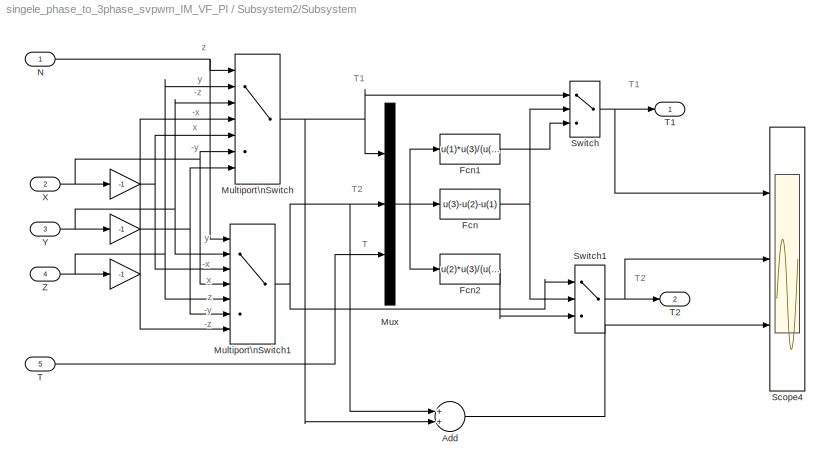
BLOCK [SubSystem] Subsystem2/Subsystem
  Ports = [5, 2]
  RequestExecContextInheritance = off
  SID = 45
BLOCK [Gain] Subsystem2/Subsystem/ 
  Gain = -1
  OutDataTypeStr = Inherit: Inherit via internal rule
  ParamDataTypeStr = Inherit: Inherit via internal rule
  SID = 51
  SaturateOnIntegerOverflow = off
BLOCK [Gain] Subsystem2/Subsystem/  
  Gain = -1
  OutDataTypeStr = Inherit: Inherit via internal rule
  ParamDataTypeStr = Inherit: Inherit via internal rule
  SID = 52
  SaturateOnIntegerOverflow = off
BLOCK [Gain] Subsystem2/Subsystem/    
  Gain = -1
  OutDataTypeStr = Inherit: Inherit via internal rule
  ParamDataTypeStr = Inherit: Inherit via internal rule
  SID = 53
  SaturateOnIntegerOverflow = off
BLOCK [Sum] Subsystem2/Subsystem/Add
  InputSameDT = off
  OutDataTypeStr = Inherit: Inherit via internal rule
  Ports = [2, 1]
  SID = 54
  SaturateOnIntegerOverflow = off
BLOCK [Fcn] Subsystem2/Subsystem/Fcn
  Expr = u(3)-u(2)-u(1)
  SID = 55
BLOCK [Fcn] Subsystem2/Subsystem/Fcn1
  Expr = u(1)*u(3)/(u(1)+u(2))
  SID = 56
BLOCK [Fcn] Subsystem2/Subsystem/Fcn2
  Expr = u(2)*u(3)/(u(1)+u(2))
  SID = 57
BLOCK [MultiPortSwitch] Subsystem2/Subsystem/Multiport\nSwitch
  InputSameDT = off
  Inputs = 6
  Ports = [7, 1]
  SID = 58
  SaturateOnIntegerOverflow = off
BLOCK [MultiPortSwitch] Subsystem2/Subsystem/Multiport\nSwitch1
  InputSameDT = off
  Inputs = 6
  Ports = [7, 1]
  SID = 59
  SaturateOnIntegerOverflow = off
BLOCK [Mux] Subsystem2/Subsystem/Mux
  DisplayOption = bar
  Inputs = 3
  Ports = [3, 1]
  SID = 60
BLOCK [Inport] Subsystem2/Subsystem/N
  IconDisplay = Port number
  SID = 46
BLOCK [Scope] Subsystem2/Subsystem/Scope4
  Floating = off
  NumInputPorts = 3
  Ports = [3]
  SID = 61
  ScopeSpecificationString = C++SS(StrPVP('Location','[5, 54, 1029, 741]'),StrPVP('Open','off'),StrPVP('ZoomMode','xonly'),MxPVP('AxesTitles',54,'struct(''axes1'',''%<SignalLabel>'',''axes2'',''%<SignalLabel>'',''axes3'',''%<SignalLabel>'')'),StrPVP('TimeRange','0.35'),StrPVP('YMin','-1e-005~-1e-005~0.00011'),StrPVP('YMax','0.00018~0.00018~0.000205'),StrPVP('SaveName','ScopeData4'),StrPVP('DataFormat','StructureWithTime'),Str...<+127ch>
BLOCK [Switch] Subsystem2/Subsystem/Switch
  InputSameDT = off
  SID = 62
  SaturateOnIntegerOverflow = off
BLOCK [Switch] Subsystem2/Subsystem/Switch1
  Criteria = u2 > Threshold
  InputSameDT = off
  SID = 63
  SaturateOnIntegerOverflow = off
BLOCK [Inport] Subsystem2/Subsystem/T
  IconDisplay = Port number
  Port = 5
  SID = 50
BLOCK [Outport] Subsystem2/Subsystem/T1
  IconDisplay = Port number
  SID = 64
BLOCK [Outport] Subsystem2/Subsystem/T2
  IconDisplay = Port number
  Port = 2
  SID = 65
BLOCK [Inport] Subsystem2/Subsystem/X
  IconDisplay = Port number
  Port = 2
  SID = 47
BLOCK [Inport] Subsystem2/Subsystem/Y
  IconDisplay = Port number
  Port = 3
  SID = 48
BLOCK [Inport] Subsystem2/Subsystem/Z
  IconDisplay = Port number
  Port = 4
  SID = 49
BLOCK [SubSystem] Subsystem2/Subsystem1
  Ports = [4, 3]
  RequestExecContextInheritance = off
  SID = 83
BLOCK [Gain] Subsystem2/Subsystem1/Gain1
  Gain = 1/4
  OutDataTypeStr = Inherit: Inherit via internal rule
  ParamDataTypeStr = Inherit: Inherit via internal rule
  SID = 88
  SaturateOnIntegerOverflow = off
BLOCK [Gain] Subsystem2/Subsystem1/Gain2
  Gain = 0.5
  OutDataTypeStr = Inherit: Inherit via internal rule
  ParamDataTypeStr = Inherit: Inherit via internal rule
  SID = 89
  SaturateOnIntegerOverflow = off
BLOCK [Gain] Subsystem2/Subsystem1/Gain3
  Gain = 0.5
  OutDataTypeStr = Inherit: Inherit via internal rule
  ParamDataTypeStr = Inherit: Inherit via internal rule
  SID = 90
  SaturateOnIntegerOverflow = off
BLOCK [MultiPortSwitch] Subsystem2/Subsystem1/Multiport\nSwitch
  InputSameDT = off
  Inputs = 6
  Ports = [7, 1]
  SID = 91
  SaturateOnIntegerOverflow = off
BLOCK [MultiPortSwitch] Subsystem2/Subsystem1/Multiport\nSwitch1
  InputSameDT = off
  Inputs = 6
  Ports = [7, 1]
  SID = 92
  SaturateOnIntegerOverflow = off
BLOCK [MultiPortSwitch] Subsystem2/Subsystem1/Multiport\nSwitch2
  InputSameDT = off
  Inputs = 6
  Ports = [7, 1]
  SID = 93
  SaturateOnIntegerOverflow = off
BLOCK [Inport] Subsystem2/Subsystem1/N
  IconDisplay = Port number
  Port = 4
  SID = 87
BLOCK [Sum] Subsystem2/Subsystem1/Subtract1
  InputSameDT = off
  Inputs = --+
  OutDataTypeStr = Inherit: Inherit via internal rule
  Ports = [3, 1]
  SID = 94
  SaturateOnIntegerOverflow = off
BLOCK [Sum] Subsystem2/Subsystem1/Subtract2
  InputSameDT = off
  OutDataTypeStr = Inherit: Inherit via internal rule
  Ports = [2, 1]
  SID = 95
  SaturateOnIntegerOverflow = off
BLOCK [Sum] Subsystem2/Subsystem1/Subtract3
  InputSameDT = off
  OutDataTypeStr = Inherit: Inherit via internal rule
  Ports = [2, 1]
  SID = 96
  SaturateOnIntegerOverflow = off
BLOCK [Inport] Subsystem2/Subsystem1/T
  IconDisplay = Port number
  Port = 3
  SID = 86
BLOCK [Inport] Subsystem2/Subsystem1/T1
  IconDisplay = Port number
  SID = 84
BLOCK [Inport] Subsystem2/Subsystem1/T2
  IconDisplay = Port number
  Port = 2
  SID = 85
BLOCK [Outport] Subsystem2/Subsystem1/Tcm1
  IconDisplay = Port number
  SID = 97
BLOCK [Outport] Subsystem2/Subsystem1/Tcm2
  IconDisplay = Port number
  Port = 2
  SID = 98
BLOCK [Outport] Subsystem2/Subsystem1/Tcm3
  IconDisplay = Port number
  Port = 3
  SID = 99
BLOCK [Inport] Subsystem2/Ualfa
  IconDisplay = Port number
  SID = 21
BLOCK [Inport] Subsystem2/Ubeta
  IconDisplay = Port number
  Port = 2
  SID = 22
BLOCK [Inport] Subsystem2/Vdc
  IconDisplay = Port number
  Port = 3
  SID = 23
BLOCK [SubSystem] Subsystem2/X.Y.Z
  Ports = [4, 3]
  RequestExecContextInheritance = off
  SID = 121
BLOCK [Product] Subsystem2/X.Y.Z/Divide
  InputSameDT = off
  Inputs = **/
  OutDataTypeStr = Inherit: Inherit via internal rule
  Ports = [3, 1]
  RndMeth = Floor
  SID = 126
  SaturateOnIntegerOverflow = off
BLOCK [Product] Subsystem2/X.Y.Z/Divide1
  InputSameDT = off
  Inputs = **/
  OutDataTypeStr = Inherit: Inherit via internal rule
  Ports = [3, 1]
  RndMeth = Floor
  SID = 127
  SaturateOnIntegerOverflow = off
BLOCK [Product] Subsystem2/X.Y.Z/Divide2
  InputSameDT = off
  Inputs = **/
  OutDataTypeStr = Inherit: Inherit via internal rule
  Ports = [3, 1]
  RndMeth = Floor
  SID = 128
  SaturateOnIntegerOverflow = off
BLOCK [Gain] Subsystem2/X.Y.Z/Gain
  Gain = 0.577
  OutDataTypeStr = Inherit: Inherit via internal rule
  ParamDataTypeStr = Inherit: Inherit via internal rule
  SID = 129
  SaturateOnIntegerOverflow = off
BLOCK [Gain] Subsystem2/X.Y.Z/Gain1
  Gain = 1.732
  OutDataTypeStr = Inherit: Inherit via internal rule
  ParamDataTypeStr = Inherit: Inherit via internal rule
  SID = 130
  SaturateOnIntegerOverflow = off
BLOCK [Gain] Subsystem2/X.Y.Z/Gain2
  Gain = 1.5
  OutDataTypeStr = Inherit: Inherit via internal rule
  ParamDataTypeStr = Inherit: Inherit via internal rule
  SID = 131
  SaturateOnIntegerOverflow = off
BLOCK [Gain] Subsystem2/X.Y.Z/Gain3
  Gain = 1.5
  OutDataTypeStr = Inherit: Inherit via internal rule
  ParamDataTypeStr = Inherit: Inherit via internal rule
  SID = 132
  SaturateOnIntegerOverflow = off
BLOCK [Sum] Subsystem2/X.Y.Z/Subtract
  InputSameDT = off
  OutDataTypeStr = Inherit: Inherit via internal rule
  Ports = [2, 1]
  SID = 133
  SaturateOnIntegerOverflow = off
BLOCK [Sum] Subsystem2/X.Y.Z/Subtract1
  InputSameDT = off
  Inputs = +-
  OutDataTypeStr = Inherit: Inherit via internal rule
  Ports = [2, 1]
  SID = 134
  SaturateOnIntegerOverflow = off
BLOCK [Inport] Subsystem2/X.Y.Z/T
  IconDisplay = Port number
  SID = 122
BLOCK [Inport] Subsystem2/X.Y.Z/Ualfa
  IconDisplay = Port number
  Port = 2
  SID = 123
BLOCK [Inport] Subsystem2/X.Y.Z/Ubeta
  IconDisplay = Port number
  Port = 3
  SID = 124
BLOCK [Inport] Subsystem2/X.Y.Z/Udc
  IconDisplay = Port number
  Port = 4
  SID = 125
BLOCK [Outport] Subsystem2/X.Y.Z/X
  IconDisplay = Port number
  SID = 135
BLOCK [Outport] Subsystem2/X.Y.Z/Y
  IconDisplay = Port number
  Port = 2
  SID = 136
BLOCK [Outport] Subsystem2/X.Y.Z/Z
  IconDisplay = Port number
  Port = 3
  SID = 137
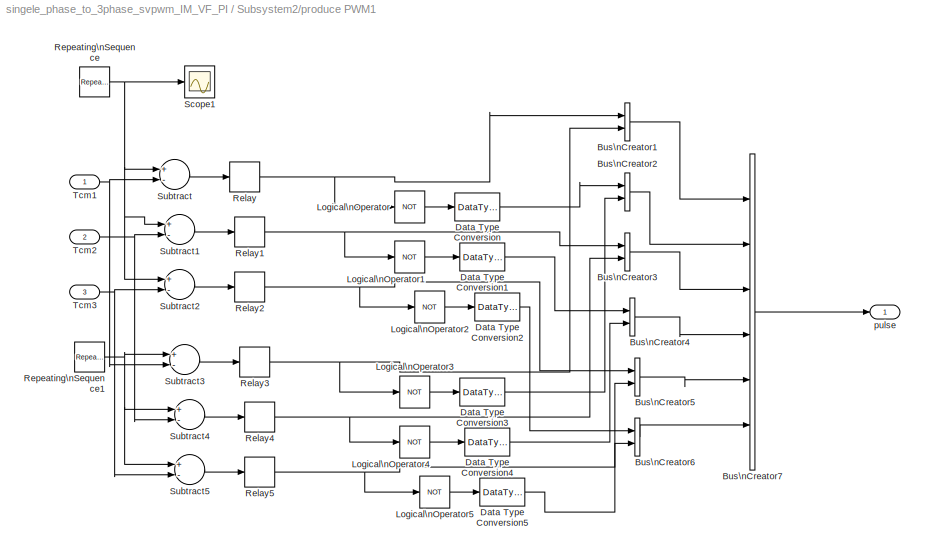
BLOCK [SubSystem] Subsystem2/produce PWM1
  Ports = [3, 1]
  RequestExecContextInheritance = off
  SID = 138
BLOCK [BusCreator] Subsystem2/produce PWM1/Bus\nCreator1
  DisplayOption = bar
  InheritFromInputs = on
  Inputs = 2
  Ports = [2, 1]
  SID = 142
BLOCK [BusCreator] Subsystem2/produce PWM1/Bus\nCreator2
  DisplayOption = bar
  InheritFromInputs = on
  Inputs = 2
  Ports = [2, 1]
  SID = 143
BLOCK [BusCreator] Subsystem2/produce PWM1/Bus\nCreator3
  DisplayOption = bar
  InheritFromInputs = on
  Inputs = 2
  Ports = [2, 1]
  SID = 144
BLOCK [BusCreator] Subsystem2/produce PWM1/Bus\nCreator4
  DisplayOption = bar
  InheritFromInputs = on
  Inputs = 2
  Ports = [2, 1]
  SID = 145
BLOCK [BusCreator] Subsystem2/produce PWM1/Bus\nCreator5
  DisplayOption = bar
  InheritFromInputs = on
  Inputs = 2
  Ports = [2, 1]
  SID = 146
BLOCK [BusCreator] Subsystem2/produce PWM1/Bus\nCreator6
  DisplayOption = bar
  InheritFromInputs = on
  Inputs = 2
  Ports = [2, 1]
  SID = 147
BLOCK [BusCreator] Subsystem2/produce PWM1/Bus\nCreator7
  DisplayOption = bar
  InheritFromInputs = on
  Inputs = 6
  Ports = [6, 1]
  SID = 148
BLOCK [DataTypeConversion] Subsystem2/produce PWM1/Data Type Conversion
  OutDataTypeStr = double
  RndMeth = Floor
  SID = 149
  SaturateOnIntegerOverflow = off
BLOCK [DataTypeConversion] Subsystem2/produce PWM1/Data Type Conversion1
  OutDataTypeStr = double
  RndMeth = Floor
  SID = 150
  SaturateOnIntegerOverflow = off
BLOCK [DataTypeConversion] Subsystem2/produce PWM1/Data Type Conversion2
  OutDataTypeStr = double
  RndMeth = Floor
  SID = 151
  SaturateOnIntegerOverflow = off
BLOCK [DataTypeConversion] Subsystem2/produce PWM1/Data Type Conversion3
  OutDataTypeStr = double
  RndMeth = Floor
  SID = 152
  SaturateOnIntegerOverflow = off
BLOCK [DataTypeConversion] Subsystem2/produce PWM1/Data Type Conversion4
  OutDataTypeStr = double
  RndMeth = Floor
  SID = 153
  SaturateOnIntegerOverflow = off
BLOCK [DataTypeConversion] Subsystem2/produce PWM1/Data Type Conversion5
  OutDataTypeStr = double
  RndMeth = Floor
  SID = 154
  SaturateOnIntegerOverflow = off
BLOCK [Logic] Subsystem2/produce PWM1/Logical\nOperator
  AllPortsSameDT = off
  Operator = NOT
  Ports = [1, 1]
  SID = 155
BLOCK [Logic] Subsystem2/produce PWM1/Logical\nOperator1
  AllPortsSameDT = off
  Operator = NOT
  Ports = [1, 1]
  SID = 156
BLOCK [Logic] Subsystem2/produce PWM1/Logical\nOperator2
  AllPortsSameDT = off
  Operator = NOT
  Ports = [1, 1]
  SID = 157
BLOCK [Logic] Subsystem2/produce PWM1/Logical\nOperator3
  AllPortsSameDT = off
  Operator = NOT
  Ports = [1, 1]
  SID = 158
BLOCK [Logic] Subsystem2/produce PWM1/Logical\nOperator4
  AllPortsSameDT = off
  Operator = NOT
  Ports = [1, 1]
  SID = 159
BLOCK [Logic] Subsystem2/produce PWM1/Logical\nOperator5
  AllPortsSameDT = off
  Operator = NOT
  Ports = [1, 1]
  SID = 160
BLOCK [Relay] Subsystem2/produce PWM1/Relay
  SID = 161
BLOCK [Relay] Subsystem2/produce PWM1/Relay1
  SID = 162
BLOCK [Relay] Subsystem2/produce PWM1/Relay2
  SID = 163
BLOCK [Relay] Subsystem2/produce PWM1/Relay3
  SID = 164
BLOCK [Relay] Subsystem2/produce PWM1/Relay4
  SID = 165
BLOCK [Relay] Subsystem2/produce PWM1/Relay5
  SID = 166
BLOCK [Reference] Subsystem2/produce PWM1/Repeating\nSequence  REF=simulink/Sources/Repeating\nSequence
  FunctionWithSeparateData = off
  Ports = [0, 1]
  RTWMemSecDataConstants = Inherit from model
  RTWMemSecDataInternal = Inherit from model
  RTWMemSecDataParameters = Inherit from model
  RTWMemSecFuncExecute = Inherit from model
  RTWMemSecFuncInitTerm = Inherit from model
  SID = 167
  ShowPortLabels = FromPortIcon
  SourceBlock = simulink/Sources/Repeating\nSequence
  SourceProductBaseCode = SL
  SourceProductName = Simulink
  SourceType = Repeating table
  SystemSampleTime = -1
  rep_seq_t = [0 0.0001 0.0002]
  rep_seq_y = [0 0.0001/2 0]
BLOCK [Reference] Subsystem2/produce PWM1/Repeating\nSequence1  REF=simulink/Sources/Repeating\nSequence
  FunctionWithSeparateData = off
  Ports = [0, 1]
  RTWMemSecDataConstants = Inherit from model
  RTWMemSecDataInternal = Inherit from model
  RTWMemSecDataParameters = Inherit from model
  RTWMemSecFuncExecute = Inherit from model
  RTWMemSecFuncInitTerm = Inherit from model
  SID = 168
  ShowPortLabels = FromPortIcon
  SourceBlock = simulink/Sources/Repeating\nSequence
  SourceProductBaseCode = SL
  SourceProductName = Simulink
  SourceType = Repeating table
  SystemSampleTime = -1
  rep_seq_t = [0 0.0001 0.0002]
  rep_seq_y = [0.0001/2 0.0001 0.0001/2]
BLOCK [Scope] Subsystem2/produce PWM1/Scope1
  Floating = off
  NumInputPorts = 1
  Ports = [1]
  SID = 169
  ScopeSpecificationString = C++SS(StrPVP('Location','[5, 54, 1029, 741]'),StrPVP('Open','off'),MxPVP('AxesTitles',54,'struct(''axes1'',''%<SignalLabel>'')'),StrPVP('TimeRange','1'),StrPVP('YMin','-0.0025'),StrPVP('YMax','0.004'),StrPVP('SaveName','ScopeData6'),StrPVP('DataFormat','StructureWithTime'),StrPVP('LimitDataPoints','off'),StrPVP('BlockParamSampleTime','0'),StrPVP('Decimation','1'),StrPVP('BlockParamSampleInput','of...<+4ch>
BLOCK [Sum] Subsystem2/produce PWM1/Subtract
  InputSameDT = off
  Inputs = +-
  OutDataTypeStr = Inherit: Inherit via internal rule
  Ports = [2, 1]
  SID = 170
  SaturateOnIntegerOverflow = off
BLOCK [Sum] Subsystem2/produce PWM1/Subtract1
  InputSameDT = off
  Inputs = +-
  OutDataTypeStr = Inherit: Inherit via internal rule
  Ports = [2, 1]
  SID = 171
  SaturateOnIntegerOverflow = off
BLOCK [Sum] Subsystem2/produce PWM1/Subtract2
  InputSameDT = off
  Inputs = +-
  OutDataTypeStr = Inherit: Inherit via internal rule
  Ports = [2, 1]
  SID = 172
  SaturateOnIntegerOverflow = off
BLOCK [Sum] Subsystem2/produce PWM1/Subtract3
  InputSameDT = off
  Inputs = +-
  OutDataTypeStr = Inherit: Inherit via internal rule
  Ports = [2, 1]
  SID = 173
  SaturateOnIntegerOverflow = off
BLOCK [Sum] Subsystem2/produce PWM1/Subtract4
  InputSameDT = off
  Inputs = +-
  OutDataTypeStr = Inherit: Inherit via internal rule
  Ports = [2, 1]
  SID = 174
  SaturateOnIntegerOverflow = off
BLOCK [Sum] Subsystem2/produce PWM1/Subtract5
  InputSameDT = off
  Inputs = +-
  OutDataTypeStr = Inherit: Inherit via internal rule
  Ports = [2, 1]
  SID = 175
  SaturateOnIntegerOverflow = off
BLOCK [Inport] Subsystem2/produce PWM1/Tcm1
  IconDisplay = Port number
  SID = 139
BLOCK [Inport] Subsystem2/produce PWM1/Tcm2
  IconDisplay = Port number
  Port = 2
  SID = 140
BLOCK [Inport] Subsystem2/produce PWM1/Tcm3
  IconDisplay = Port number
  Port = 3
  SID = 141
BLOCK [Outport] Subsystem2/produce PWM1/pulse
  IconDisplay = Port number
  SID = 176
BLOCK [Outport] Subsystem2/pulse
  IconDisplay = Port number
  SID = 177
BLOCK [Sum] Sum
  IconShape = round
  InputSameDT = off
  Inputs = |-+
  OutDataTypeStr = Inherit: Inherit via internal rule
  Ports = [2, 1]
  SID = 178
  SaturateOnIntegerOverflow = off
BLOCK [Reference] Three-Level Bridge  REF=powerlib/Power\nElectronics/Three-Level Bridge
  Arms = 3
  AttributesFormatString = \\n
  Device = IGBT / Diodes
  ForwardVoltages = [  2 1 ]
  FunctionWithSeparateData = off
  Measurements = All voltages and currents
  Ports = [1, 0, 0, 0, 0, 3, 3]
  RTWMemSecDataConstants = Inherit from model
  RTWMemSecDataInternal = Inherit from model
  RTWMemSecDataParameters = Inherit from model
  RTWMemSecFuncExecute = Inherit from model
  RTWMemSecFuncInitTerm = Inherit from model
  Ron = 0.2e-3
  SID = 179
  SbubberCapacitance = 1e-6
  ShowPortLabels = FromPortIcon
  SnubberResistance = 50
  SourceBlock = powerlib/Power\nElectronics/Three-Level Bridge
  SourceProductBaseCode = PS
  SourceProductName = Simscape Electrical
  SourceType = Three-Level Bridge
  SystemSampleTime = -1
BLOCK [Reference] Three-Phase\nV-I Measurement  REF=powerlib/Measurements/Three-Phase\nV-I Measurement
  CurrentMeasurement = yes
  FunctionWithSeparateData = off
  Ipu = off
  LabelI = Iabc
  LabelV = Vabc
  OutputType = Complex
  PSBequivalent = 0
  Pbase = 100e6
  PhasorSimulation = off
  Ports = [0, 2, 0, 0, 0, 3, 3]
  RTWMemSecDataConstants = Inherit from model
  RTWMemSecDataInternal = Inherit from model
  RTWMemSecDataParameters = Inherit from model
  RTWMemSecFuncExecute = Inherit from model
  RTWMemSecFuncInitTerm = Inherit from model
  SID = 180
  SetLabelI = off
  SetLabelV = off
  ShowPortLabels = FromPortIcon
  SourceBlock = powerlib/Measurements/Three-Phase\nV-I Measurement
  SourceProductBaseCode = PS
  SourceProductName = Simscape Electrical
  SourceType = Three-Phase VI Measurement
  SystemSampleTime = -1
  Vbase = 500e3
  VoltageMeasurement = phase-to-phase
  Vpu = off
BLOCK [Reference] Universal Bridge  REF=powerlib/Power\nElectronics/Universal Bridge
  Arms = 2
  Device = Diodes
  ForwardVoltage = 0
  ForwardVoltages = [  0  0  ]
  FunctionWithSeparateData = off
  GTOparameters = [ 10e-6 , 20e-6 ]
  IGBTparameters = [ 1e-6 , 2e-6 ]
  Lon = 0
  Measurements = None
  Ports = [0, 0, 0, 0, 0, 2, 2]
  RTWMemSecDataConstants = Inherit from model
  RTWMemSecDataInternal = Inherit from model
  RTWMemSecDataParameters = Inherit from model
  RTWMemSecFuncExecute = Inherit from model
  RTWMemSecFuncInitTerm = Inherit from model
  Ron = 1e-3
  SID = 181
  ShowPortLabels = FromPortIcon
  SnubberCapacitance = inf
  SnubberResistance = 1e5
  SourceBlock = powerlib/Power\nElectronics/Universal Bridge
  SourceProductBaseCode = PS
  SourceProductName = Simscape Electrical
  SourceType = Universal Bridge
  SystemSampleTime = -1
  converterType = Rectifier
BLOCK [Scope] Vdc
  Floating = off
  NumInputPorts = 1
  Ports = [1]
  SID = 182
  ScopeSpecificationString = C++SS(StrPVP('Location','[5, 39, 1289, 714]'),StrPVP('Open','off'),MxPVP('AxesTitles',54,'struct(''axes1'',''%<SignalLabel>'')'),StrPVP('TimeRange','1'),StrPVP('YMin','425'),StrPVP('YMax','750'),StrPVP('SaveToWorkspace','on'),StrPVP('SaveName','Ia_'),StrPVP('DataFormat','StructureWithTime'),StrPVP('LimitDataPoints','off'),StrPVP('BlockParamSampleInput','on'),StrPVP('BlockParamSampleTime','100e-6')...<+26ch>
BLOCK [Scope] Vdc1
  Floating = off
  NumInputPorts = 1
  Ports = [1]
  SID = 183
  ScopeSpecificationString = C++SS(StrPVP('Location','[5, 43, 1285, 714]'),StrPVP('Open','off'),MxPVP('AxesTitles',54,'struct(''axes1'',''%<SignalLabel>'')'),StrPVP('TimeRange','1'),StrPVP('YMin','341.5'),StrPVP('YMax','350'),StrPVP('SaveToWorkspace','on'),StrPVP('SaveName','Ia_1'),StrPVP('DataFormat','StructureWithTime'),StrPVP('LimitDataPoints','off'),StrPVP('BlockParamSampleInput','on'),StrPVP('BlockParamSampleTime','100e-...<+29ch>
BLOCK [Scope] Vdc3
  Floating = off
  NumInputPorts = 1
  Ports = [1]
  SID = 184
  ScopeSpecificationString = C++SS(StrPVP('Location','[5, 43, 1285, 714]'),StrPVP('Open','off'),MxPVP('AxesTitles',54,'struct(''axes1'',''%<SignalLabel>'')'),StrPVP('TimeRange','1'),StrPVP('YMin','549.65'),StrPVP('YMax','549.82'),StrPVP('SaveToWorkspace','on'),StrPVP('SaveName','Ia_3'),StrPVP('DataFormat','StructureWithTime'),StrPVP('LimitDataPoints','off'),StrPVP('BlockParamSampleInput','on'),StrPVP('BlockParamSampleTime','1...<+33ch>
BLOCK [Scope] Vdc4
  Floating = off
  NumInputPorts = 1
  Ports = [1]
  SID = 185
  ScopeSpecificationString = C++SS(StrPVP('Location','[5, 43, 1285, 714]'),StrPVP('Open','off'),MxPVP('AxesTitles',54,'struct(''axes1'',''%<SignalLabel>'')'),StrPVP('TimeRange','1'),StrPVP('YMin','-90'),StrPVP('YMax','90'),StrPVP('SaveToWorkspace','on'),StrPVP('SaveName','Ia_4'),StrPVP('DataFormat','StructureWithTime'),StrPVP('LimitDataPoints','off'),StrPVP('BlockParamSampleInput','on'),StrPVP('BlockParamSampleTime','100e-6')...<+26ch>
BLOCK [Reference] Voltage Measurement  REF=powerlib/Measurements/Voltage Measurement
  FunctionWithSeparateData = off
  OutputType = Complex
  PSBequivalent = 0
  PhasorSimulation = off
  Ports = [0, 1, 0, 0, 0, 2]
  RTWMemSecDataConstants = Inherit from model
  RTWMemSecDataInternal = Inherit from model
  RTWMemSecDataParameters = Inherit from model
  RTWMemSecFuncExecute = Inherit from model
  RTWMemSecFuncInitTerm = Inherit from model
  SID = 186
  ShowPortLabels = FromPortIcon
  SourceBlock = powerlib/Measurements/Voltage Measurement
  SourceProductBaseCode = PS
  SourceProductName = Simscape Electrical
  SourceType = Voltage Measurement
  SystemSampleTime = -1
BLOCK [Scope] Wm
  Floating = off
  NumInputPorts = 2
  Ports = [2]
  SID = 187
  ScopeSpecificationString = C++SS(StrPVP('Location','[5, 48, 1285, 679]'),StrPVP('Open','off'),MxPVP('AxesTitles',54,'struct(''axes1'',''%<SignalLabel>'',''axes2'',''%<SignalLabel>'')'),StrPVP('YMin','127.5~-55'),StrPVP('YMax','162.5~55'),StrPVP('SaveToWorkspace','on'),StrPVP('SaveName','ScopeData9'),StrPVP('DataFormat','StructureWithTime'),StrPVP('LimitDataPoints','off'),StrPVP('BlockParamSampleTime','0'),StrPVP('Decimation...<+45ch>
BLOCK [Reference] powergui  REF=powerlib/powergui
  DisplayStyle = 1
  EnableUseOfTLC = off
  Frange = [0:2:500]
  FreqAxis = off
  FunctionMessages = off
  FunctionWithSeparateData = off
  HookPort = off
  Interpol = off
  MaxFrequency = 1000
  Ports = []
  RTWMemSecDataConstants = Inherit from model
  RTWMemSecDataInternal = Inherit from model
  RTWMemSecDataParameters = Inherit from model
  RTWMemSecFuncExecute = Inherit from model
  RTWMemSecFuncInitTerm = Inherit from model
  RestoreLinks = warning
  RmsSteady = 1
  SID = 188
  SPID = off
  SampleTime = 50e-6
  ShowGrid = off
  ShowPortLabels = FromPortIcon
  SourceBlock = powerlib/powergui
  SourceProductBaseCode = PS
  SourceProductName = Simscape Electrical
  SourceType = PSB option menu block
  StartTime = 0.0
  SwTol = 0
  SystemSampleTime = -1
  Ts = 0
  UserData = DataTag0
  UserDataPersistent = on
  Xlog = on
  Ylog = off
  ZoomFFT = on
  cycles = 1
  display = off
  echomessages = off
  frequency = 60
  frequencyindice = 50
  frequencyindicesteady = 1
  fundamental = 60
  methode = off
  save = off
  variable = ZData
  x0status = blocks
ANNOTATION (root): SVPWM based Closed loop Speed Control of Induction Motor with PI\nAuthor: Siva Ganesh Malla, IIT Bhubaneswar, India, Email: <email>
ANNOTATION Subsystem2/Subsystem: -x
ANNOTATION Subsystem2/Subsystem: -y
ANNOTATION Subsystem2/Subsystem: -z
ANNOTATION Subsystem2/Subsystem: T
ANNOTATION Subsystem2/Subsystem: T1
ANNOTATION Subsystem2/Subsystem: T2
ANNOTATION Subsystem2/Subsystem: x
ANNOTATION Subsystem2/Subsystem: y
ANNOTATION Subsystem2/Subsystem: z
ANNOTATION Subsystem2/Subsystem1: Ta
ANNOTATION Subsystem2/Subsystem1: Tb
ANNOTATION Subsystem2/Subsystem1: Tc
ANNOTATION Subsystem2/Subsystem1: a
ANNOTATION Subsystem2/Subsystem1: b
ANNOTATION Subsystem2/Subsystem1: c
LINE Asynchronous Machine\nSI Units:1 -> Bus\nSelector:1
NET Bus\nCreator:1 -> Fcn1:1, Fcn2:1, Fcn3:1
NET Bus\nSelector:1 -> Sum:1, Wm:1
LINE Bus\nSelector:2 -> Wm:2
LINE Clock:1 -> Bus\nCreator:3
LINE Discrete\nPI Controller1:1 -> Bus\nCreator:2
NET Discrete\nPI Controller2:1 -> Bus\nCreator:1, Vdc1:1
LINE Embedded\nMATLAB Function1/ Demux :1 -> Embedded\nMATLAB Function1/ Terminator :1
LINE Embedded\nMATLAB Function1/ SFunction :1 -> Embedded\nMATLAB Function1/ Demux :1
LINE Embedded\nMATLAB Function1/ SFunction :2 -> Embedded\nMATLAB Function1/Ualpha:1
LINE Embedded\nMATLAB Function1/ SFunction :3 -> Embedded\nMATLAB Function1/Ubeta:1
LINE Embedded\nMATLAB Function1/Ua:1 -> Embedded\nMATLAB Function1/ SFunction :1
LINE Embedded\nMATLAB Function1/Ub:1 -> Embedded\nMATLAB Function1/ SFunction :2
LINE Embedded\nMATLAB Function1/Uc:1 -> Embedded\nMATLAB Function1/ SFunction :3
LINE Embedded\nMATLAB Function1:1 -> Subsystem2:1
LINE Embedded\nMATLAB Function1:2 -> Subsystem2:2
LINE Fcn1:1 -> Embedded\nMATLAB Function1:1
LINE Fcn2:1 -> Embedded\nMATLAB Function1:2
LINE Fcn3:1 -> Embedded\nMATLAB Function1:3
LINE Ref. Speed (rps)1:1 -> Sum:2
LINE Saturation:1 -> Subsystem2:3
LINE Step:1 -> Asynchronous Machine\nSI Units:1
NET Subsystem2/Constant1:1 -> Subsystem2/Subsystem1:3, Subsystem2/Subsystem:5, Subsystem2/X.Y.Z:1
NET Subsystem2/N1/Constant1:1 -> Subsystem2/N1/Switch1:3, Subsystem2/N1/Switch2:3, Subsystem2/N1/Switch:3
NET Subsystem2/N1/Constant:1 -> Subsystem2/N1/Switch1:1, Subsystem2/N1/Switch2:1, Subsystem2/N1/Switch:1
LINE Subsystem2/N1/Gain1:1 -> Subsystem2/N1/Sum1:2
LINE Subsystem2/N1/Gain2:1 -> Subsystem2/N1/Sum2:2
LINE Subsystem2/N1/Gain3:1 -> Subsystem2/N1/Sum2:3
LINE Subsystem2/N1/Gain:1 -> Subsystem2/N1/Sum:2
LINE Subsystem2/N1/Sum1:1 -> Subsystem2/N1/Switch2:2
LINE Subsystem2/N1/Sum2:1 -> Subsystem2/N1/N:1
LINE Subsystem2/N1/Sum:1 -> Subsystem2/N1/Switch1:2
LINE Subsystem2/N1/Switch1:1 -> Subsystem2/N1/Gain2:1
LINE Subsystem2/N1/Switch2:1 -> Subsystem2/N1/Gain3:1
LINE Subsystem2/N1/Switch:1 -> Subsystem2/N1/Sum2:1
NET Subsystem2/N1/Ualfa:1 -> Subsystem2/N1/Gain1:1, Subsystem2/N1/Gain:1
NET Subsystem2/N1/Ubeta:1 -> Subsystem2/N1/Sum1:1, Subsystem2/N1/Sum:1, Subsystem2/N1/Switch:2
NET Subsystem2/N1:1 -> Subsystem2/Scope1:1, Subsystem2/Subsystem1:4, Subsystem2/Subsystem:1
NET Subsystem2/Subsystem/    :1 -> Subsystem2/Subsystem/Multiport\nSwitch1:7, Subsystem2/Subsystem/Multiport\nSwitch:4
NET Subsystem2/Subsystem/  :1 -> Subsystem2/Subsystem/Multiport\nSwitch1:6, Subsystem2/Subsystem/Multiport\nSwitch:7
NET Subsystem2/Subsystem/ :1 -> Subsystem2/Subsystem/Multiport\nSwitch1:3, Subsystem2/Subsystem/Multiport\nSwitch:5
LINE Subsystem2/Subsystem/Add:1 -> Subsystem2/Subsystem/Scope4:3
LINE Subsystem2/Subsystem/Fcn1:1 -> Subsystem2/Subsystem/Switch:3
LINE Subsystem2/Subsystem/Fcn2:1 -> Subsystem2/Subsystem/Switch1:3
NET Subsystem2/Subsystem/Fcn:1 -> Subsystem2/Subsystem/Switch1:2, Subsystem2/Subsystem/Switch:2
NET Subsystem2/Subsystem/Multiport\nSwitch1:1 -> Subsystem2/Subsystem/Add:1, Subsystem2/Subsystem/Mux:2, Subsystem2/Subsystem/Switch1:1
NET Subsystem2/Subsystem/Multiport\nSwitch:1 -> Subsystem2/Subsystem/Add:2, Subsystem2/Subsystem/Mux:1, Subsystem2/Subsystem/Switch:1
NET Subsystem2/Subsystem/Mux:1 -> Subsystem2/Subsystem/Fcn1:1, Subsystem2/Subsystem/Fcn2:1, Subsystem2/Subsystem/Fcn:1
NET Subsystem2/Subsystem/N:1 -> Subsystem2/Subsystem/Multiport\nSwitch1:1, Subsystem2/Subsystem/Multiport\nSwitch:1
NET Subsystem2/Subsystem/Switch1:1 -> Subsystem2/Subsystem/Scope4:2, Subsystem2/Subsystem/T2:1
NET Subsystem2/Subsystem/Switch:1 -> Subsystem2/Subsystem/Scope4:1, Subsystem2/Subsystem/T1:1
LINE Subsystem2/Subsystem/T:1 -> Subsystem2/Subsystem/Mux:3
NET Subsystem2/Subsystem/X:1 -> Subsystem2/Subsystem/ :1, Subsystem2/Subsystem/Multiport\nSwitch1:4, Subsystem2/Subsystem/Multiport\nSwitch:6
NET Subsystem2/Subsystem/Y:1 -> Subsystem2/Subsystem/  :1, Subsystem2/Subsystem/Multiport\nSwitch1:2, Subsystem2/Subsystem/Multiport\nSwitch:3
NET Subsystem2/Subsystem/Z:1 -> Subsystem2/Subsystem/    :1, Subsystem2/Subsystem/Multiport\nSwitch1:5, Subsystem2/Subsystem/Multiport\nSwitch:2
NET Subsystem2/Subsystem1/Gain1:1 -> Subsystem2/Subsystem1/Multiport\nSwitch1:2, Subsystem2/Subsystem1/Multiport\nSwitch1:6, Subsystem2/Subsystem1/Multiport\nSwitch2:5, Subsystem2/Subsystem1/Multiport\nSwitch2:7, Subsystem2/Subsystem1/Multiport\nSwitch:3, Subsystem2/Subsystem1/Multiport\nSwitch:4, Subsystem2/Subsystem1/Subtract2:2
LINE Subsystem2/Subsystem1/Gain2:1 -> Subsystem2/Subsystem1/Subtract3:1
LINE Subsystem2/Subsystem1/Gain3:1 -> Subsystem2/Subsystem1/Subtract2:1
LINE Subsystem2/Subsystem1/Multiport\nSwitch1:1 -> Subsystem2/Subsystem1/Tcm2:1
LINE Subsystem2/Subsystem1/Multiport\nSwitch2:1 -> Subsystem2/Subsystem1/Tcm3:1
LINE Subsystem2/Subsystem1/Multiport\nSwitch:1 -> Subsystem2/Subsystem1/Tcm1:1
NET Subsystem2/Subsystem1/N:1 -> Subsystem2/Subsystem1/Multiport\nSwitch1:1, Subsystem2/Subsystem1/Multiport\nSwitch2:1, Subsystem2/Subsystem1/Multiport\nSwitch:1
LINE Subsystem2/Subsystem1/Subtract1:1 -> Subsystem2/Subsystem1/Gain1:1
NET Subsystem2/Subsystem1/Subtract2:1 -> Subsystem2/Subsystem1/Multiport\nSwitch1:4, Subsystem2/Subsystem1/Multiport\nSwitch1:5, Subsystem2/Subsystem1/Multiport\nSwitch2:3, Subsystem2/Subsystem1/Multiport\nSwitch2:6, Subsystem2/Subsystem1/Multiport\nSwitch:2, Subsystem2/Subsystem1/Multiport\nSwitch:7, Subsystem2/Subsystem1/Subtract3:2
NET Subsystem2/Subsystem1/Subtract3:1 -> Subsystem2/Subsystem1/Multiport\nSwitch1:3, Subsystem2/Subsystem1/Multiport\nSwitch1:7, Subsystem2/Subsystem1/Multiport\nSwitch2:2, Subsystem2/Subsystem1/Multiport\nSwitch2:4, Subsystem2/Subsystem1/Multiport\nSwitch:5, Subsystem2/Subsystem1/Multiport\nSwitch:6
NET Subsystem2/Subsystem1/T1:1 -> Subsystem2/Subsystem1/Gain3:1, Subsystem2/Subsystem1/Subtract1:1
NET Subsystem2/Subsystem1/T2:1 -> Subsystem2/Subsystem1/Gain2:1, Subsystem2/Subsystem1/Subtract1:2
LINE Subsystem2/Subsystem1/T:1 -> Subsystem2/Subsystem1/Subtract1:3
NET Subsystem2/Subsystem1:1 -> Subsystem2/Scope:1, Subsystem2/produce PWM1:1
LINE Subsystem2/Subsystem1:2 -> Subsystem2/produce PWM1:2
LINE Subsystem2/Subsystem1:3 -> Subsystem2/produce PWM1:3
NET Subsystem2/Subsystem:1 -> Subsystem2/Scope6:1, Subsystem2/Subsystem1:1
LINE Subsystem2/Subsystem:2 -> Subsystem2/Subsystem1:2
NET Subsystem2/Ualfa:1 -> Subsystem2/N1:1, Subsystem2/Scope3:1, Subsystem2/X.Y.Z:2
NET Subsystem2/Ubeta:1 -> Subsystem2/N1:2, Subsystem2/Scope3:2, Subsystem2/X.Y.Z:3
LINE Subsystem2/Vdc:1 -> Subsystem2/X.Y.Z:4
LINE Subsystem2/X.Y.Z/Divide1:1 -> Subsystem2/X.Y.Z/Gain2:1
LINE Subsystem2/X.Y.Z/Divide2:1 -> Subsystem2/X.Y.Z/Gain3:1
LINE Subsystem2/X.Y.Z/Divide:1 -> Subsystem2/X.Y.Z/X:1
LINE Subsystem2/X.Y.Z/Gain1:1 -> Subsystem2/X.Y.Z/Divide:1
LINE Subsystem2/X.Y.Z/Gain2:1 -> Subsystem2/X.Y.Z/Y:1
LINE Subsystem2/X.Y.Z/Gain3:1 -> Subsystem2/X.Y.Z/Z:1
NET Subsystem2/X.Y.Z/Gain:1 -> Subsystem2/X.Y.Z/Subtract1:1, Subsystem2/X.Y.Z/Subtract:1
LINE Subsystem2/X.Y.Z/Subtract1:1 -> Subsystem2/X.Y.Z/Divide2:1
LINE Subsystem2/X.Y.Z/Subtract:1 -> Subsystem2/X.Y.Z/Divide1:1
NET Subsystem2/X.Y.Z/T:1 -> Subsystem2/X.Y.Z/Divide1:2, Subsystem2/X.Y.Z/Divide2:2, Subsystem2/X.Y.Z/Divide:2
NET Subsystem2/X.Y.Z/Ualfa:1 -> Subsystem2/X.Y.Z/Subtract1:2, Subsystem2/X.Y.Z/Subtract:2
NET Subsystem2/X.Y.Z/Ubeta:1 -> Subsystem2/X.Y.Z/Gain1:1, Subsystem2/X.Y.Z/Gain:1
NET Subsystem2/X.Y.Z/Udc:1 -> Subsystem2/X.Y.Z/Divide1:3, Subsystem2/X.Y.Z/Divide2:3, Subsystem2/X.Y.Z/Divide:3
LINE Subsystem2/X.Y.Z:1 -> Subsystem2/Subsystem:2
LINE Subsystem2/X.Y.Z:2 -> Subsystem2/Subsystem:3
LINE Subsystem2/X.Y.Z:3 -> Subsystem2/Subsystem:4
LINE Subsystem2/produce PWM1/Bus\nCreator1:1 -> Subsystem2/produce PWM1/Bus\nCreator7:1
LINE Subsystem2/produce PWM1/Bus\nCreator2:1 -> Subsystem2/produce PWM1/Bus\nCreator7:2
LINE Subsystem2/produce PWM1/Bus\nCreator3:1 -> Subsystem2/produce PWM1/Bus\nCreator7:3
LINE Subsystem2/produce PWM1/Bus\nCreator4:1 -> Subsystem2/produce PWM1/Bus\nCreator7:4
LINE Subsystem2/produce PWM1/Bus\nCreator5:1 -> Subsystem2/produce PWM1/Bus\nCreator7:5
LINE Subsystem2/produce PWM1/Bus\nCreator6:1 -> Subsystem2/produce PWM1/Bus\nCreator7:6
LINE Subsystem2/produce PWM1/Bus\nCreator7:1 -> Subsystem2/produce PWM1/pulse:1
LINE Subsystem2/produce PWM1/Data Type Conversion1:1 -> Subsystem2/produce PWM1/Bus\nCreator4:1
LINE Subsystem2/produce PWM1/Data Type Conversion2:1 -> Subsystem2/produce PWM1/Bus\nCreator6:1
LINE Subsystem2/produce PWM1/Data Type Conversion3:1 -> Subsystem2/produce PWM1/Bus\nCreator2:2
LINE Subsystem2/produce PWM1/Data Type Conversion4:1 -> Subsystem2/produce PWM1/Bus\nCreator4:2
LINE Subsystem2/produce PWM1/Data Type Conversion5:1 -> Subsystem2/produce PWM1/Bus\nCreator6:2
LINE Subsystem2/produce PWM1/Data Type Conversion:1 -> Subsystem2/produce PWM1/Bus\nCreator2:1
LINE Subsystem2/produce PWM1/Logical\nOperator1:1 -> Subsystem2/produce PWM1/Data Type Conversion1:1
LINE Subsystem2/produce PWM1/Logical\nOperator2:1 -> Subsystem2/produce PWM1/Data Type Conversion2:1
LINE Subsystem2/produce PWM1/Logical\nOperator3:1 -> Subsystem2/produce PWM1/Data Type Conversion3:1
LINE Subsystem2/produce PWM1/Logical\nOperator4:1 -> Subsystem2/produce PWM1/Data Type Conversion4:1
LINE Subsystem2/produce PWM1/Logical\nOperator5:1 -> Subsystem2/produce PWM1/Data Type Conversion5:1
LINE Subsystem2/produce PWM1/Logical\nOperator:1 -> Subsystem2/produce PWM1/Data Type Conversion:1
NET Subsystem2/produce PWM1/Relay1:1 -> Subsystem2/produce PWM1/Bus\nCreator3:1, Subsystem2/produce PWM1/Logical\nOperator1:1
NET Subsystem2/produce PWM1/Relay2:1 -> Subsystem2/produce PWM1/Bus\nCreator5:1, Subsystem2/produce PWM1/Logical\nOperator2:1
NET Subsystem2/produce PWM1/Relay3:1 -> Subsystem2/produce PWM1/Bus\nCreator1:2, Subsystem2/produce PWM1/Logical\nOperator3:1
NET Subsystem2/produce PWM1/Relay4:1 -> Subsystem2/produce PWM1/Bus\nCreator3:2, Subsystem2/produce PWM1/Logical\nOperator4:1
NET Subsystem2/produce PWM1/Relay5:1 -> Subsystem2/produce PWM1/Bus\nCreator5:2, Subsystem2/produce PWM1/Logical\nOperator5:1
NET Subsystem2/produce PWM1/Relay:1 -> Subsystem2/produce PWM1/Bus\nCreator1:1, Subsystem2/produce PWM1/Logical\nOperator:1
NET Subsystem2/produce PWM1/Repeating\nSequence1:1 -> Subsystem2/produce PWM1/Subtract3:1, Subsystem2/produce PWM1/Subtract4:1, Subsystem2/produce PWM1/Subtract5:1
NET Subsystem2/produce PWM1/Repeating\nSequence:1 -> Subsystem2/produce PWM1/Scope1:1, Subsystem2/produce PWM1/Subtract1:1, Subsystem2/produce PWM1/Subtract2:1, Subsystem2/produce PWM1/Subtract:1
LINE Subsystem2/produce PWM1/Subtract1:1 -> Subsystem2/produce PWM1/Relay1:1
LINE Subsystem2/produce PWM1/Subtract2:1 -> Subsystem2/produce PWM1/Relay2:1
LINE Subsystem2/produce PWM1/Subtract3:1 -> Subsystem2/produce PWM1/Relay3:1
LINE Subsystem2/produce PWM1/Subtract4:1 -> Subsystem2/produce PWM1/Relay4:1
LINE Subsystem2/produce PWM1/Subtract5:1 -> Subsystem2/produce PWM1/Relay5:1
LINE Subsystem2/produce PWM1/Subtract:1 -> Subsystem2/produce PWM1/Relay:1
NET Subsystem2/produce PWM1/Tcm1:1 -> Subsystem2/produce PWM1/Subtract3:2, Subsystem2/produce PWM1/Subtract:2
NET Subsystem2/produce PWM1/Tcm2:1 -> Subsystem2/produce PWM1/Subtract1:2, Subsystem2/produce PWM1/Subtract4:2
NET Subsystem2/produce PWM1/Tcm3:1 -> Subsystem2/produce PWM1/Subtract2:2, Subsystem2/produce PWM1/Subtract5:2
LINE Subsystem2/produce PWM1:1 -> Subsystem2/pulse:1
LINE Subsystem2:1 -> Three-Level Bridge:1
NET Sum:1 -> Discrete\nPI Controller1:1, Discrete\nPI Controller2:1
LINE Three-Phase\nV-I Measurement:1 -> Vdc3:1
LINE Three-Phase\nV-I Measurement:2 -> Vdc4:1
NET Voltage Measurement:1 -> Saturation:1, Vdc:1
PLINE 1-ph AC:LConn1 -- Universal Bridge:LConn2
PLINE 1-ph AC:RConn1 -- Universal Bridge:LConn1
PLINE Asynchronous Machine\nSI Units:LConn1 -- Three-Phase\nV-I Measurement:RConn1
PLINE Asynchronous Machine\nSI Units:LConn2 -- Three-Phase\nV-I Measurement:RConn2
PLINE Asynchronous Machine\nSI Units:LConn3 -- Three-Phase\nV-I Measurement:RConn3
PNET net1: C1:LConn1 -- L:RConn1 -- Three-Level Bridge:RConn1
PNET net2: C1:RConn1 -- C2:LConn1 -- Ground1:LConn1 -- Three-Level Bridge:RConn2
PNET net3: C2:RConn1 -- C:RConn1 -- Three-Level Bridge:RConn3 -- Universal Bridge:RConn2 -- Voltage Measurement:LConn2
PNET net4: C:LConn1 -- L:LConn1 -- Universal Bridge:RConn1 -- Voltage Measurement:LConn1
PLINE Three-Level Bridge:LConn1 -- Three-Phase\nV-I Measurement:LConn1
PLINE Three-Level Bridge:LConn2 -- Three-Phase\nV-I Measurement:LConn2
PLINE Three-Level Bridge:LConn3 -- Three-Phase\nV-I Measurement:LConn3
note: NET lines group one-source signal fan-out (src -> all destinations, sorted); 1:1 wires keep LINE; PNET lines group multi-terminal physical nets as a canonical sorted terminal list (undirected conserving connections); 2-terminal nets keep the pairwise PLINE form
CHART Embedded\nMATLAB Function1 states=1 transitions=1
  STATE_LABEL 'eML_blk_kernel()'
